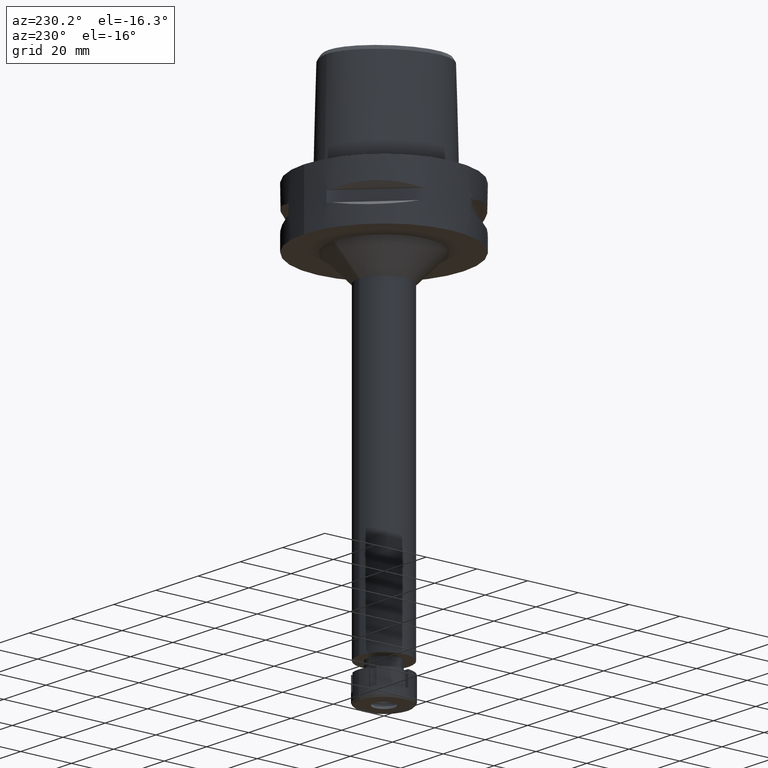
[diagram: clean part render]
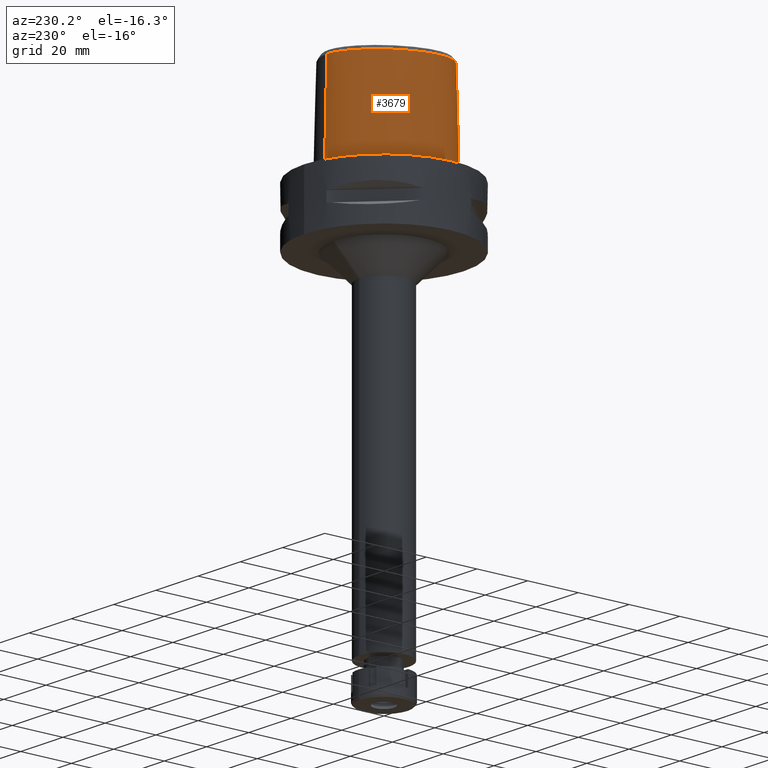
[diagram: same view with one face highlighted and labeled with its STEP entity id]
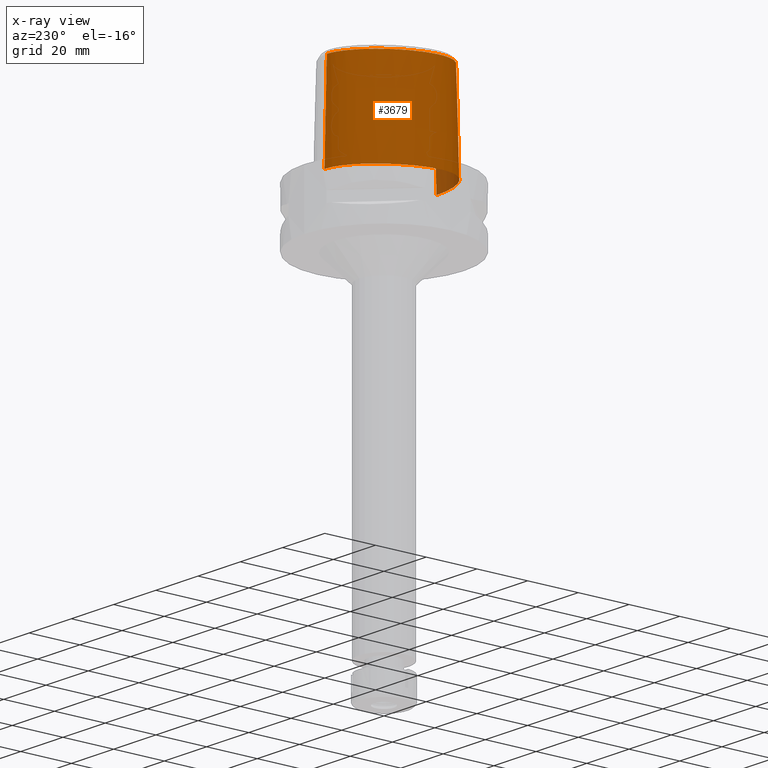
[diagram: x-ray of the same camera — body ghosted, the highlighted face saturated]
A machine part, auxiliary view. The second image highlights one B-rep face of the part: STEP entity #3679.
The next image is the same camera in x-ray: the body ghosted, the highlighted face saturated — about 3% of this face is hidden behind the body in this view.
In plain terms, the highlighted face is a freeform B-spline surface patch.
Its self-contained STEP definition (entity closure, byte-faithful):
#6 = CARTESIAN_POINT ( 'NONE',  ( -20.16779742989000113, 4.447573677405999959, 24.59139852881000010 ) ) ;
#34 = CARTESIAN_POINT ( 'NONE',  ( -17.80867312147000092, 10.28184210894000117, 11.93048047436999859 ) ) ;
#65 = CARTESIAN_POINT ( 'NONE',  ( -20.76670354678000052, 4.663413653145999760, -0.7304375800635999338 ) ) ;
#90 = CARTESIAN_POINT ( 'NONE',  ( -17.25769860237999964, 9.963736585049000283, 37.25231658324999984 ) ) ;
#116 = CARTESIAN_POINT ( 'NONE',  ( -21.68301106276999946, -0.3332743945289000087, 11.93048047436999859 ) ) ;
#133 = CARTESIAN_POINT ( 'NONE',  ( -20.34961802006919740, -11.74885744178855340, -1.590631032948432513E-06 ) ) ;
#141 = CARTESIAN_POINT ( 'NONE',  ( -19.15132530970000246, -12.46323155930000048, 24.59139852881000010 ) ) ;
#155 = CARTESIAN_POINT ( 'NONE',  ( -5.098437032125580082, 22.52602542770555871, -1.590631032948432513E-06 ) ) ;
#164 = CARTESIAN_POINT ( 'NONE',  ( -16.77374386016999708, -15.44292476917000023, 11.93048047436999859 ) ) ;
#191 = CARTESIAN_POINT ( 'NONE',  ( -1.853278696391999825, -20.08023933730999744, 24.59139852881000010 ) ) ;
#224 = CARTESIAN_POINT ( 'NONE',  ( -21.76083716802999746, -6.805026051213000748, 11.93048047436999859 ) ) ;
#227 = CARTESIAN_POINT ( 'NONE',  ( -3.830582834638338596, -20.11061303524462573, 14.18178188204342405 ) ) ;
#243 = VERTEX_POINT ( 'NONE', #252 ) ;
#252 = CARTESIAN_POINT ( 'NONE',  ( -6.936546298697000348E-13, -20.38876923348000147, 11.44999999999999929 ) ) ;
#253 = CARTESIAN_POINT ( 'NONE',  ( 0.4439216921927999771, -19.74161857628000050, 37.25231658324999984 ) ) ;
#261 = CARTESIAN_POINT ( 'NONE',  ( -2.187988573835274675, -20.13397303482912903, 18.90815865957991804 ) ) ;
#291 = CARTESIAN_POINT ( 'NONE',  ( -2.823171496020530746, -20.10104368072839165, 18.40390846381850665 ) ) ;
#302 = EDGE_CURVE ( 'NONE', #4441, #243, #5310, .T. ) ;
#344 = CARTESIAN_POINT ( 'NONE',  ( -2.647522161654190409, -20.26593589461833744, 12.41993733201942263 ) ) ;
#400 = CARTESIAN_POINT ( 'NONE',  ( -21.32871527669595935, -4.105831244393796098, 36.52186244848012109 ) ) ;
#451 = CARTESIAN_POINT ( 'NONE',  ( -18.08416038101000112, 10.44089487087999935, -0.7304375800635999338 ) ) ;
#458 = CARTESIAN_POINT ( 'NONE',  ( -2.503154198992729729, -19.81241979316484603, 31.80000012753034966 ) ) ;
#466 = CARTESIAN_POINT ( 'NONE',  ( -3.467735300037683377, -20.16817589423725465, 13.40749538294857146 ) ) ;
#482 = CARTESIAN_POINT ( 'NONE',  ( -4.868968454919000877, 21.95285545920999937, 24.59139852881000010 ) ) ;
#488 = CARTESIAN_POINT ( 'NONE',  ( -1.251533273949542169, -19.88005341380073432, 31.80000012753034966 ) ) ;
#497 = VERTEX_POINT ( 'NONE', #3846 ) ;
#511 = CARTESIAN_POINT ( 'NONE',  ( -10.34823243684000005, 18.70095506131000107, 24.59139852881000010 ) ) ;
#567 = CARTESIAN_POINT ( 'NONE',  ( -14.17879762360999862, 15.44741198512000047, 11.93048047436999859 ) ) ;
#586 = CARTESIAN_POINT ( 'NONE',  ( -7.571159454497413677, 21.31457034692602548, -1.590631032948432513E-06 ) ) ;
#595 = CARTESIAN_POINT ( 'NONE',  ( -10.91263711307000150, -18.01320810253000104, 37.25231658324999984 ) ) ;
#615 = CARTESIAN_POINT ( 'NONE',  ( -1.678547993840546537, -20.33965717508419502, 11.81410234512601853 ) ) ;
#616 = CARTESIAN_POINT ( 'NONE',  ( -1.975847471388772369, -20.32064467132638796, 11.96254614166202757 ) ) ;
#621 = CARTESIAN_POINT ( 'NONE',  ( -21.57281239023000197, -9.001246194474999740, -0.7304375800635999338 ) ) ;
#627 = CARTESIAN_POINT ( 'NONE',  ( -3.848435446462607157, -20.04310701875527911, 16.79138261317859104 ) ) ;
#648 = CARTESIAN_POINT ( 'NONE',  ( -16.38077696138999784, -14.94316464914999898, 37.25231658324999984 ) ) ;
#649 = EDGE_LOOP ( 'NONE', ( #927, #5428, #3867, #4135, #2287, #4396, #5520, #2902 ) ) ;
#655 = CARTESIAN_POINT ( 'NONE',  ( -4.019667317128778450, -20.04319797611780984, 16.01149687265074917 ) ) ;
#657 = CARTESIAN_POINT ( 'NONE',  ( -2.945056662729590435, -20.23335974770773404, 12.71951979027752166 ) ) ;
#670 = CARTESIAN_POINT ( 'NONE',  ( -22.24453911843729870, -4.100468749765984633, -1.590631032948432513E-06 ) ) ;
#686 = CARTESIAN_POINT ( 'NONE',  ( -20.36546124296999949, -11.75800453082999830, -0.7304375800635999338 ) ) ;
#713 = CARTESIAN_POINT ( 'NONE',  ( -14.68244496996000059, -17.23001772813000088, -0.7304375800635999338 ) ) ;
#714 = EDGE_CURVE ( 'NONE', #1225, #2341, #3553, .T. ) ;
#720 = CARTESIAN_POINT ( 'NONE',  ( -2.852725281555362535, -20.09931334524931401, 18.37480908509491684 ) ) ;
#748 = CARTESIAN_POINT ( 'NONE',  ( -1.533511455572774462, -20.16025888516049847, 19.24845571506998709 ) ) ;
#779 = CARTESIAN_POINT ( 'NONE',  ( -4.467522189396128773, -19.48130287050979348, 36.52186244848012109 ) ) ;
#828 = CARTESIAN_POINT ( 'NONE',  ( -20.09619618741212932, -10.23243843867888181, 36.52186244848012109 ) ) ;
#883 = CARTESIAN_POINT ( 'NONE',  ( 0.7234356449526999633, 23.47140592420999639, -0.7304375800635999338 ) ) ;
#895 = CARTESIAN_POINT ( 'NONE',  ( -3.522029659439640081, -20.16043548747140690, 13.49928467490661710 ) ) ;
#927 = ORIENTED_EDGE ( 'NONE', *, *, #4798, .F. ) ;
#969 = CARTESIAN_POINT ( 'NONE',  ( 0.4823619556322999435, 23.48603817964999863, -0.7304375800635999338 ) ) ;
#971 = CARTESIAN_POINT ( 'NONE',  ( -3.089195988020840389, -20.21685458561790583, 12.88011891962714017 ) ) ;
#976 = CARTESIAN_POINT ( 'NONE',  ( -0.8945856573126832467, -20.17742435737030959, 19.45218689967066084 ) ) ;
#1001 = CARTESIAN_POINT ( 'NONE',  ( -4.750826224791000030, 21.65775806877000065, 37.25231658324999984 ) ) ;
#1031 = CARTESIAN_POINT ( 'NONE',  ( -17.88993660681999742, -13.52675025299999945, 37.25231658324999984 ) ) ;
#1051 = CARTESIAN_POINT ( 'NONE',  ( -20.74942744641430181, 4.657187513557980552, -1.590631032948432513E-06 ) ) ;
#1070 = CARTESIAN_POINT ( 'NONE',  ( -3.686640039273423319, -20.05085371969648378, 17.17691650729972608 ) ) ;
#1078 = CARTESIAN_POINT ( 'NONE',  ( -21.55524829833817790, -8.996025401994035775, -1.590631032948432513E-06 ) ) ;
#1086 = CARTESIAN_POINT ( 'NONE',  ( -6.232237598765999920, -19.68961187751999731, 24.59139852881000010 ) ) ;
#1089 = CARTESIAN_POINT ( 'NONE',  ( -16.39211280191938513, -14.95758113318741422, 36.52186244848012109 ) ) ;
#1092 = CARTESIAN_POINT ( 'NONE',  ( -1.320866626972709401, -20.16697411650878990, 19.32965971007563510 ) ) ;
#1142 = EDGE_CURVE ( 'NONE', #1225, #2801, #3828, .T. ) ;
#1154 = LINE ( 'NONE', #5071, #5420 ) ;
#1183 = CARTESIAN_POINT ( 'NONE',  ( -3.724367697017637813, -20.04896662180712497, 17.09120659051006541 ) ) ;
#1195 = CARTESIAN_POINT ( 'NONE',  ( 2.041042029990999821E-08, -19.88004246002000031, 31.80000004972000127 ) ) ;
#1208 = CARTESIAN_POINT ( 'NONE',  ( -3.637738201363999835, -19.56971413236999879, 36.52186244848000030 ) ) ;
#1211 = CARTESIAN_POINT ( 'NONE',  ( -4.044860985360022809, -20.04749655353610294, 15.72095293212619893 ) ) ;
#1225 = VERTEX_POINT ( 'NONE', #3387 ) ;
#1233 = VECTOR ( 'NONE', #5552, 1000.000000000000114 ) ;
#1239 = DIRECTION ( 'NONE',  ( -4.234889124639874260E-13, -0.02499051295389925070, -0.9996876883618708298 ) ) ;
#1240 = CARTESIAN_POINT ( 'NONE',  ( -20.67704215115528754, -8.734985316449790815, 36.52186244848012109 ) ) ;
#1267 = CARTESIAN_POINT ( 'NONE',  ( -3.671249123513567802, -19.60525173594972514, 34.94790829898666829 ) ) ;
#1286 = B_SPLINE_CURVE_WITH_KNOTS ( 'NONE', 3,
 ( #4947, #3659, #4523, #155, #586, #5402, #1509, #1561, #1051, #4918, #670, #1925, #1078, #3597, #133, #2792, #1897, #2411, #1877, #5378, #1476, #3182, #3155 ),
 .UNSPECIFIED., .F., .F.,
 ( 4, 1, 1, 1, 1, 1, 1, 1, 1, 1, 1, 1, 1, 1, 1, 1, 1, 1, 1, 1, 4 ),
 ( 0.0000000000000000000, 0.04166666666724999635, 0.08333333333387001052, 0.1250000000004999889, 0.1666666666672000086, 0.2500000000004000134, 0.3333333333335999904, 0.4166666666670000296, 0.5000000000001999512, 0.5416666666668999985, 0.5833333333333999837, 0.6250000000001000311, 0.6458333333333999837, 0.6666666666667000474, 0.6875000000000000000, 0.7083333333333000637, 0.7500000000000000000, 0.7916666666666000163, 0.8333333333332000326, 0.9166666666664999852, 1.000000000000000000 ),
 .UNSPECIFIED. ) ;
#1314 = CARTESIAN_POINT ( 'NONE',  ( 0.6850314155862000653, 22.83959056903000118, 24.59139852881000010 ) ) ;
#1341 = CARTESIAN_POINT ( 'NONE',  ( -19.88562090098495005, 4.345879983792466206, 36.52186244848012109 ) ) ;
#1342 = CARTESIAN_POINT ( 'NONE',  ( -7.099337802566000555, 20.50831395173999994, 37.25231658324999984 ) ) ;
#1345 = CARTESIAN_POINT ( 'NONE',  ( -3.294693599458651700, -20.19174263028435234, 13.14094743667249254 ) ) ;
#1386 = CARTESIAN_POINT ( 'NONE',  ( -3.647723961122987024, -20.14156542810248496, 13.73530131633870610 ) ) ;
#1404 = CARTESIAN_POINT ( 'NONE',  ( -21.99640701348999983, -0.2778990166615000201, -0.7304375800635999338 ) ) ;
#1409 = CARTESIAN_POINT ( 'NONE',  ( -3.736722311398999796, -19.67781602443999844, 31.80000000000000071 ) ) ;
#1435 = CARTESIAN_POINT ( 'NONE',  ( -0.5821289287476999474, 22.88453099113999656, 24.59139852881000010 ) ) ;
#1476 = CARTESIAN_POINT ( 'NONE',  ( -6.341471026277423206, -20.29812503936724966, -1.590631032948432513E-06 ) ) ;
#1487 = CARTESIAN_POINT ( 'NONE',  ( -16.97022730955000114, -15.69280482917999997, -0.7304375800635999338 ) ) ;
#1491 = CARTESIAN_POINT ( 'NONE',  ( -3.952973241258888937, -20.08624587561761743, 14.60894738506809709 ) ) ;
#1509 = CARTESIAN_POINT ( 'NONE',  ( -14.40795642013373801, 15.64093752580083141, -1.590631032948432513E-06 ) ) ;
#1517 = CARTESIAN_POINT ( 'NONE',  ( -18.58171406405999804, -14.18198046378999955, -0.7304375800635999338 ) ) ;
#1519 = CARTESIAN_POINT ( 'NONE',  ( -3.862670319767398386, -20.10459525844602169, 14.28058037402878355 ) ) ;
#1525 = CARTESIAN_POINT ( 'NONE',  ( -2.620910454320059202, -20.11234871000608138, 18.58832188861294910 ) ) ;
#1540 = CARTESIAN_POINT ( 'NONE',  ( -1.812531856175363609, -20.33143503110655104, 11.87770907741172621 ) ) ;
#1545 = CARTESIAN_POINT ( 'NONE',  ( 0.6657744346529000934, -19.73734270126000112, 37.25231658324999984 ) ) ;
#1561 = CARTESIAN_POINT ( 'NONE',  ( -18.06826691987762601, 10.43171876998113135, -1.590631032948432513E-06 ) ) ;
#1572 = CARTESIAN_POINT ( 'NONE',  ( -6.175998610020999813, -19.37631799267999710, 37.25231658324999984 ) ) ;
#1579 = CARTESIAN_POINT ( 'NONE',  ( -2.781372202970820329, -20.10345949974347235, 18.44421388672484952 ) ) ;
#1610 = CARTESIAN_POINT ( 'NONE',  ( -2.696297221291517054, -20.10826766487147665, 18.52327467490404800 ) ) ;
#1635 = B_SPLINE_CURVE_WITH_KNOTS ( 'NONE', 3,
 ( #5251, #488, #458, #1409 ),
 .UNSPECIFIED., .F., .F.,
 ( 4, 4 ),
 ( 0.0000000000000000000, 1.000000000000000000 ),
 .UNSPECIFIED. ) ;
#1637 = CARTESIAN_POINT ( 'NONE',  ( -4.048201904855770472, -20.04950689277237430, 15.62483520886270050 ) ) ;
#1657 = CARTESIAN_POINT ( 'NONE',  ( -1.813174329720000123E-11, 22.56201468012000078, 36.52186680743999858 ) ) ;
#1670 = CARTESIAN_POINT ( 'NONE',  ( -1.560125442582418476, -20.34639974841496723, 11.76254649919985873 ) ) ;
#1692 = CARTESIAN_POINT ( 'NONE',  ( -10.15538788053390107, 18.47129535094051178, 36.52186244848012109 ) ) ;
#1696 = CARTESIAN_POINT ( 'NONE',  ( -3.637738201363999835, -19.56971413236999879, 36.52186244848000030 ) ) ;
#1736 = CARTESIAN_POINT ( 'NONE',  ( -20.46725048833999949, 4.555493665275999859, 11.93048047436999859 ) ) ;
#1767 = CARTESIAN_POINT ( 'NONE',  ( -21.62788410578000153, -4.104079497862000103, 24.59139852881000010 ) ) ;
#1803 = CARTESIAN_POINT ( 'NONE',  ( -3.699028711252647206, -20.13326891470799396, 13.84698179887988978 ) ) ;
#1816 = CARTESIAN_POINT ( 'NONE',  ( -13.93560872910999926, 15.24203796933999833, 24.59139852881000010 ) ) ;
#1826 = CARTESIAN_POINT ( 'NONE',  ( 0.0000000000000000000, -20.18628283968999781, 19.55000000000000071 ) ) ;
#1851 = CARTESIAN_POINT ( 'NONE',  ( -21.36961511204999908, -0.3886497723961999662, 24.59139852881000010 ) ) ;
#1860 = CARTESIAN_POINT ( 'NONE',  ( -0.2476349277130089344, -20.18628283969000492, 19.55000000000000782 ) ) ;
#1875 = EDGE_CURVE ( 'NONE', #2801, #4040, #3807, .T. ) ;
#1877 = CARTESIAN_POINT ( 'NONE',  ( -14.67337966393892401, -17.21410159716221244, -1.590631032948432513E-06 ) ) ;
#1884 = CARTESIAN_POINT ( 'NONE',  ( -21.26836746780000098, -8.910752261074998515, 11.93048047436999859 ) ) ;
#1886 = CARTESIAN_POINT ( 'NONE',  ( -3.373031804187405669, -20.18121639258755451, 13.25829856262909701 ) ) ;
#1897 = CARTESIAN_POINT ( 'NONE',  ( -18.56841068039064879, -14.16937991025299404, -1.590631032948432513E-06 ) ) ;
#1908 = CARTESIAN_POINT ( 'NONE',  ( 0.4479792504548000265, -20.05810161161999972, 24.59139852881000010 ) ) ;
#1925 = CARTESIAN_POINT ( 'NONE',  ( -22.05732878274992004, -6.847636724430295807, -1.590631032948432513E-06 ) ) ;
#1939 = CARTESIAN_POINT ( 'NONE',  ( -22.07548128864000248, -6.850245535128999919, -0.7304375800635999338 ) ) ;
#1968 = CARTESIAN_POINT ( 'NONE',  ( -20.96392254536999999, -8.820258327674999066, 24.59139852881000010 ) ) ;
#1970 = CARTESIAN_POINT ( 'NONE',  ( -3.788123932986404707, -20.11813248785005115, 14.06654490362369536 ) ) ;
#1977 = CARTESIAN_POINT ( 'NONE',  ( -1.517187227777487379, -20.16080388944384083, 19.25509261511386327 ) ) ;
#1996 = CARTESIAN_POINT ( 'NONE',  ( -20.65947762293999546, -8.729764394275001393, 37.25231658324999984 ) ) ;
#2003 = CARTESIAN_POINT ( 'NONE',  ( -2.467031803646716703, -20.12045714792750672, 18.71463355124587835 ) ) ;
#2004 = CARTESIAN_POINT ( 'NONE',  ( -3.024136408352561922, -20.22444627912442883, 12.80466769080733158 ) ) ;
#2034 = CARTESIAN_POINT ( 'NONE',  ( -3.081106146089191977, -20.08580853919490394, 18.14635433979055534 ) ) ;
#2063 = CARTESIAN_POINT ( 'NONE',  ( -2.095920934924301093, -20.13817625620761120, 18.96566852664292924 ) ) ;
#2085 = CARTESIAN_POINT ( 'NONE',  ( -10.91891098965447959, -18.03046406390570411, 36.52186244848012109 ) ) ;
#2089 = CARTESIAN_POINT ( 'NONE',  ( -1.638762875757055593, -20.34199391072963436, 11.79616403447456285 ) ) ;
#2200 = CARTESIAN_POINT ( 'NONE',  ( -3.439520336088130126, -20.17214097397766182, 13.36117420421215662 ) ) ;
#2222 = CARTESIAN_POINT ( 'NONE',  ( -10.55288408668999978, 18.94467590845999894, 11.93048047436999859 ) ) ;
#2269 = CARTESIAN_POINT ( 'NONE',  ( -2.568271205268000124, 23.31126238145999707, -0.7304375800635999338 ) ) ;
#2277 = EDGE_CURVE ( 'NONE', #2335, #4441, #3562, .T. ) ;
#2287 = ORIENTED_EDGE ( 'NONE', *, *, #714, .F. ) ;
#2301 = CARTESIAN_POINT ( 'NONE',  ( -17.53318586191999984, 10.12278934699000033, 24.59139852881000010 ) ) ;
#2330 = CARTESIAN_POINT ( 'NONE',  ( -19.54161185807999956, -11.28235486488999939, 37.25231658324999984 ) ) ;
#2335 = VERTEX_POINT ( 'NONE', #1195 ) ;
#2341 = VERTEX_POINT ( 'NONE', #2543 ) ;
#2357 = CARTESIAN_POINT ( 'NONE',  ( -20.09084478133999951, -11.59945464217999955, 11.93048047436999859 ) ) ;
#2391 = CARTESIAN_POINT ( 'NONE',  ( -18.35112157830999990, -13.96357039353000040, 11.93048047436999859 ) ) ;
#2398 = CARTESIAN_POINT ( 'NONE',  ( -4.038047189179770236, -20.04588600821303501, 15.81762949444052246 ) ) ;
#2411 = CARTESIAN_POINT ( 'NONE',  ( -16.95889175061674692, -15.67838870326495204, -1.590631032948432513E-06 ) ) ;
#2413 = CARTESIAN_POINT ( 'NONE',  ( 2.041042029990999821E-08, -19.88004246002000031, 31.80000004972000127 ) ) ;
#2421 = CARTESIAN_POINT ( 'NONE',  ( -19.81622831970999954, -11.44090475353999992, 24.59139852881000010 ) ) ;
#2453 = CARTESIAN_POINT ( 'NONE',  ( -2.857701613778707905, -20.09902039673189122, 18.36986640665573489 ) ) ;
#2481 = CARTESIAN_POINT ( 'NONE',  ( -2.360303563074455546, -20.12579123674474602, 18.79379445004745719 ) ) ;
#2508 = CARTESIAN_POINT ( 'NONE',  ( -2.870676439667320778, -20.24157259641101092, 12.64311214024309216 ) ) ;
#2543 = CARTESIAN_POINT ( 'NONE',  ( -3.736722311398999796, -19.67781602443999844, 31.80000000000000071 ) ) ;
#2557 = CARTESIAN_POINT ( 'NONE',  ( -3.749024933915385382, -20.12484193209295569, 13.96788032053498618 ) ) ;
#2559 = CARTESIAN_POINT ( 'NONE',  ( -7.108589416785529913, 20.52412325828568385, 36.52186244848012109 ) ) ;
#2588 = CARTESIAN_POINT ( 'NONE',  ( -18.90964971338124201, -12.28759719904823200, 36.52186244848012109 ) ) ;
#2611 = CARTESIAN_POINT ( 'NONE',  ( -21.05621916132999871, -0.4440251502635000347, 37.25231658324999984 ) ) ;
#2668 = CARTESIAN_POINT ( 'NONE',  ( -0.5985508206599999825, 23.20171281896000082, 11.93048047436999859 ) ) ;
#2692 = CARTESIAN_POINT ( 'NONE',  ( 0.4569144571211000150, 22.85341801428999986, 24.59139852881000010 ) ) ;
#2715 = CARTESIAN_POINT ( 'NONE',  ( -7.580410838896000314, 21.33037926075000001, -0.7304375800635999338 ) ) ;
#2773 = CARTESIAN_POINT ( 'NONE',  ( -21.31039837723000119, -4.105938496760999534, 37.25231658324999984 ) ) ;
#2779 = CARTESIAN_POINT ( 'NONE',  ( -3.649552918765418763, -20.05278137445483466, 17.25690594501919506 ) ) ;
#2792 = CARTESIAN_POINT ( 'NONE',  ( -19.64947369085913564, -12.82525392966783429, -1.590631032948432513E-06 ) ) ;
#2800 = CARTESIAN_POINT ( 'NONE',  ( -20.36913780173000177, -10.35391846126000104, 24.59139852881000010 ) ) ;
#2801 = VERTEX_POINT ( 'NONE', #5435 ) ;
#2803 = CARTESIAN_POINT ( 'NONE',  ( -17.90324032096920703, -13.53935111955730264, 36.52186244848012109 ) ) ;
#2806 = CARTESIAN_POINT ( 'NONE',  ( -4.001073718362888165, -20.04211669945555485, 16.14143145178881866 ) ) ;
#2828 = CARTESIAN_POINT ( 'NONE',  ( -18.12052909256999911, -13.74516032326000037, 24.59139852881000010 ) ) ;
#2868 = CARTESIAN_POINT ( 'NONE',  ( -1.036028639268795182, -20.37488265450534186, 11.54589121856474421 ) ) ;
#2889 = CARTESIAN_POINT ( 'NONE',  ( -1.435479731732086428, -20.16346186668282670, 19.28735383016543636 ) ) ;
#2902 = ORIENTED_EDGE ( 'NONE', *, *, #4481, .T. ) ;
#2917 = CARTESIAN_POINT ( 'NONE',  ( -4.050020239240827102, -20.05172727870759175, 15.52772083009781667 ) ) ;
#2938 = CARTESIAN_POINT ( 'NONE',  ( -3.765619531578895618, -20.12201689240451685, 14.00897413268474523 ) ) ;
#2968 = CARTESIAN_POINT ( 'NONE',  ( -21.07430010672742426, -0.4408303445192650605, 36.52186244848012109 ) ) ;
#2971 = CARTESIAN_POINT ( 'NONE',  ( -3.704239276368590961, -19.64128040965313460, 33.37395414949332917 ) ) ;
#3079 = CARTESIAN_POINT ( 'NONE',  ( 0.6658293009029000453, 22.52368289142999913, 37.25231658324999984 ) ) ;
#3095 = CARTESIAN_POINT ( 'NONE',  ( -3.555378551744965421, -20.15552821991417431, 13.55933742269333742 ) ) ;
#3141 = CARTESIAN_POINT ( 'NONE',  ( -4.987110685046999947, 22.24795284964000075, 11.93048047436999859 ) ) ;
#3143 = CARTESIAN_POINT ( 'NONE',  ( -3.378917219881233613, -20.18042296661755941, 13.26717508011585878 ) ) ;
#3155 = CARTESIAN_POINT ( 'NONE',  ( -5.544117533597000181E-12, -20.67499999999999716, 7.264559324463998182E-14 ) ) ;
#3157 = EDGE_CURVE ( 'NONE', #2335, #2341, #1635, .T. ) ;
#3160 = CARTESIAN_POINT ( 'NONE',  ( -2.875633270581706924, -20.24102979138325864, 12.64810551045560949 ) ) ;
#3182 = CARTESIAN_POINT ( 'NONE',  ( -2.113823675427298543, -20.67500003976369172, -1.590631032948432513E-06 ) ) ;
#3193 = CARTESIAN_POINT ( 'NONE',  ( -18.89485289242000121, -12.27684381631999955, 37.25231658324999984 ) ) ;
#3204 = CARTESIAN_POINT ( 'NONE',  ( -2.840925263428953684, -20.10000581476812442, 18.38647058799852729 ) ) ;
#3221 = CARTESIAN_POINT ( 'NONE',  ( -11.13012657214000001, -18.61140120603999648, 11.93048047436999859 ) ) ;
#3226 = CARTESIAN_POINT ( 'NONE',  ( -3.732637044259099923, -20.04856818254153694, 17.07161403143208034 ) ) ;
#3242 = CARTESIAN_POINT ( 'NONE',  ( -19.66427014424999697, -12.83600704526999969, -0.7304375800635999338 ) ) ;
#3248 = CARTESIAN_POINT ( 'NONE',  ( -2.004946554115309532, -20.14219031904388402, 19.01961090508743268 ) ) ;
#3274 = CARTESIAN_POINT ( 'NONE',  ( -16.57726041077999923, -15.19304470915999872, 24.59139852881000010 ) ) ;
#3310 = CARTESIAN_POINT ( 'NONE',  ( -3.623131309222435537, -20.05420346129723441, 17.31085075801311746 ) ) ;
#3333 = CARTESIAN_POINT ( 'NONE',  ( -4.049668354669047510, -20.05093596202170048, 15.56089917110888976 ) ) ;
#3360 = CARTESIAN_POINT ( 'NONE',  ( -14.22011356155950068, -16.41829364186296658, 36.52186244848012109 ) ) ;
#3385 = CARTESIAN_POINT ( 'NONE',  ( -3.755699594870204105, -20.12370835398181512, 13.98431559339847396 ) ) ;
#3387 = CARTESIAN_POINT ( 'NONE',  ( -3.637738201363999835, -19.56971413236999879, 36.52186244848000030 ) ) ;
#3440 = CARTESIAN_POINT ( 'NONE',  ( -19.86834437145000010, 4.339653689535999170, 37.25231658324999984 ) ) ;
#3496 = CARTESIAN_POINT ( 'NONE',  ( -2.503210914551999622, 22.99958943622999996, 11.93048047436999859 ) ) ;
#3520 = CARTESIAN_POINT ( 'NONE',  ( 0.4696382063767000070, 23.16972809697000102, 11.93048047436999859 ) ) ;
#3553 = B_SPLINE_CURVE_WITH_KNOTS ( 'NONE', 3,
 ( #1696, #1267, #2971, #4678 ),
 .UNSPECIFIED., .F., .F.,
 ( 4, 4 ),
 ( 0.0000000000000000000, 1.000000000000000000 ),
 .UNSPECIFIED. ) ;
#3554 = CARTESIAN_POINT ( 'NONE',  ( -22.26285556288999956, -4.100361500063000264, -0.7304375800635999338 ) ) ;
#3558 = CARTESIAN_POINT ( 'NONE',  ( -3.389265356481617975, -20.17902220973950378, 13.28291429010534586 ) ) ;
#3562 = B_SPLINE_CURVE_WITH_KNOTS ( 'NONE', 3,
 ( #2413, #4111, #4583, #3689 ),
 .UNSPECIFIED., .F., .F.,
 ( 4, 4 ),
 ( 0.0000000000000000000, 1.000000000000000000 ),
 .UNSPECIFIED. ) ;
#3584 = CARTESIAN_POINT ( 'NONE',  ( -21.13154892681000163, -6.714587083380999744, 37.25231658324999984 ) ) ;
#3597 = CARTESIAN_POINT ( 'NONE',  ( -20.93173255850151193, -10.60431642245365147, -1.590631032948432513E-06 ) ) ;
#3610 = CARTESIAN_POINT ( 'NONE',  ( -20.94844325638000271, -10.61175396898000045, -0.7304375800635999338 ) ) ;
#3639 = CARTESIAN_POINT ( 'NONE',  ( -14.36818034354999973, -16.67825731972000014, 24.59139852881000010 ) ) ;
#3659 = CARTESIAN_POINT ( 'NONE',  ( -0.8548392451239059664, 23.47500003976484351, -1.590631032948432513E-06 ) ) ;
#3668 = CARTESIAN_POINT ( 'NONE',  ( 0.4520368087166999338, -20.37458464696999982, 11.93048047436999859 ) ) ;
#3675 = CARTESIAN_POINT ( 'NONE',  ( -1.945188340990088527, -20.14472224014066981, 19.05290483599387841 ) ) ;
#3679 = ADVANCED_FACE ( 'NONE', ( #4845 ), #4705, .T. ) ;
#3680 = CARTESIAN_POINT ( 'NONE',  ( -1.592783463533563149, -20.34459380331111333, 11.77630631410508677 ) ) ;
#3689 = CARTESIAN_POINT ( 'NONE',  ( 0.0000000000000000000, -20.18628283968999781, 19.55000000000000071 ) ) ;
#3696 = CARTESIAN_POINT ( 'NONE',  ( -6.288476587509999050, -20.00290576236000106, 11.93048047436999859 ) ) ;
#3733 = CARTESIAN_POINT ( 'NONE',  ( -3.258458186252930933, -20.07518877969969395, 17.91982202573088401 ) ) ;
#3762 = CARTESIAN_POINT ( 'NONE',  ( -2.218905924398697938, -20.13252692328815385, 18.88811097025638830 ) ) ;
#3765 = CARTESIAN_POINT ( 'NONE',  ( -1.555094416682109904, -20.34667554096305153, 11.76044708272214478 ) ) ;
#3807 = LINE ( 'NONE', #1657, #1233 ) ;
#3828 = B_SPLINE_CURVE_WITH_KNOTS ( 'NONE', 3,
 ( #1208, #779, #4206, #2085, #3360, #1089, #2803, #2588, #4308, #828, #1240, #4261, #400, #2968, #1341, #4653, #3865, #1692, #2559, #5101, #4336, #5554, #5157 ),
 .UNSPECIFIED., .F., .F.,
 ( 4, 1, 1, 1, 1, 1, 1, 1, 1, 1, 1, 1, 1, 1, 1, 1, 1, 1, 1, 1, 4 ),
 ( 0.0000000000000000000, 0.03580973941721924542, 0.1234633994701801463, 0.1672902294966080450, 0.2111170595230359437, 0.2549438895495689250, 0.2768573045627829576, 0.2987707195759968237, 0.3206841345892108563, 0.3425975496024247224, 0.3864243796289578703, 0.4302512096552805199, 0.4740780396818136677, 0.5617316997346692986, 0.6493853597877355943, 0.7370390198405912807, 0.8246926798934470781, 0.8685195099199800595, 0.9123463399464394330, 0.9561731699728883704, 1.000000000000000000 ),
 .UNSPECIFIED. ) ;
#3846 = CARTESIAN_POINT ( 'NONE',  ( -5.544117533597000181E-12, -20.67499999999999716, 7.264559324463998182E-14 ) ) ;
#3865 = CARTESIAN_POINT ( 'NONE',  ( -13.70645028110956432, 15.04851272300592235, 36.52186244848012109 ) ) ;
#3867 = ORIENTED_EDGE ( 'NONE', *, *, #2277, .F. ) ;
#3893 = CARTESIAN_POINT ( 'NONE',  ( 0.4441907078655000229, 22.53710793160999870, 37.25231658324999984 ) ) ;
#3926 = CARTESIAN_POINT ( 'NONE',  ( -13.69241983459999901, 15.03666395355999796, 37.25231658324999984 ) ) ;
#3938 = CARTESIAN_POINT ( 'NONE',  ( -2.086662004819396010, -20.31268127563378911, 12.02638839298497331 ) ) ;
#3951 = CARTESIAN_POINT ( 'NONE',  ( -10.14358078699000032, 18.45723421415999965, 37.25231658324999984 ) ) ;
#3977 = CARTESIAN_POINT ( 'NONE',  ( -7.259695481342999912, 20.78233572140999996, 24.59139852881000010 ) ) ;
#3999 = CARTESIAN_POINT ( 'NONE',  ( -2.887298006306552534, -20.23974971339209716, 12.65991565105042405 ) ) ;
#4004 = CARTESIAN_POINT ( 'NONE',  ( 0.4560943669786000076, -20.69106768230999904, -0.7304375800635999338 ) ) ;
#4030 = CARTESIAN_POINT ( 'NONE',  ( -21.44619304741999599, -6.759806567296999802, 24.59139852881000010 ) ) ;
#4036 = CARTESIAN_POINT ( 'NONE',  ( -1.222436418487023335, -20.16967318534058151, 19.36171385434369796 ) ) ;
#4040 = VERTEX_POINT ( 'NONE', #4322 ) ;
#4063 = CARTESIAN_POINT ( 'NONE',  ( -3.925430104255240416, -20.04100510367244681, 16.53130951953290761 ) ) ;
#4088 = CARTESIAN_POINT ( 'NONE',  ( -1.836486898537999846, -19.76356470764999784, 37.25231658324999984 ) ) ;
#4111 = CARTESIAN_POINT ( 'NONE',  ( 6.821586764262540543E-09, -19.98212988583292216, 27.71666688228260611 ) ) ;
#4118 = CARTESIAN_POINT ( 'NONE',  ( -1.870070494246000026, -20.39691396697000059, 11.93048047436999859 ) ) ;
#4126 = CARTESIAN_POINT ( 'NONE',  ( -1.656557867876204737, -20.15608475847800207, 19.19752105505822470 ) ) ;
#4132 = CARTESIAN_POINT ( 'NONE',  ( -6.936546298697000348E-13, -20.38876923348000147, 11.44999999999999929 ) ) ;
#4135 = ORIENTED_EDGE ( 'NONE', *, *, #3157, .T. ) ;
#4138 = CARTESIAN_POINT ( 'NONE',  ( -3.404642689844542769, -20.17693293396709819, 13.30648216239984727 ) ) ;
#4206 = CARTESIAN_POINT ( 'NONE',  ( -7.300578999877767927, -19.07170748892079359, 36.52186244848012109 ) ) ;
#4261 = CARTESIAN_POINT ( 'NONE',  ( -21.14970188364080528, -6.717195958887229423, 36.52186244848012109 ) ) ;
#4308 = CARTESIAN_POINT ( 'NONE',  ( -19.55745547455480704, -11.29150218116150484, 36.52186244848012109 ) ) ;
#4309 = CARTESIAN_POINT ( 'NONE',  ( -21.94536983433999922, -4.102220498962999784, 11.93048047436999859 ) ) ;
#4322 = CARTESIAN_POINT ( 'NONE',  ( 3.796788648475999581E-11, 23.47499999999000053, 6.972200594645999482E-14 ) ) ;
#4336 = CARTESIAN_POINT ( 'NONE',  ( -2.376843896515612009, 22.39422508473742823, 36.52186244848012109 ) ) ;
#4338 = CARTESIAN_POINT ( 'NONE',  ( -0.5657070368354000234, 22.56734916330999852, 37.25231658324999984 ) ) ;
#4369 = CARTESIAN_POINT ( 'NONE',  ( -2.438150623837000541, 22.68791649099000196, 24.59139852881000010 ) ) ;
#4391 = CARTESIAN_POINT ( 'NONE',  ( -5.105252915174999906, 22.54305024007999947, -0.7304375800635999338 ) ) ;
#4396 = ORIENTED_EDGE ( 'NONE', *, *, #1142, .T. ) ;
#4419 = CARTESIAN_POINT ( 'NONE',  ( -7.420053160119000069, 21.05635749107999999, 11.93048047436999859 ) ) ;
#4423 = CARTESIAN_POINT ( 'NONE',  ( -2.904740653634592995, -20.23783060520583277, 12.67768464775381076 ) ) ;
#4441 = VERTEX_POINT ( 'NONE', #5317 ) ;
#4450 = CARTESIAN_POINT ( 'NONE',  ( -6.344715576255000045, -20.31619964721000215, -0.7304375800635999338 ) ) ;
#4478 = CARTESIAN_POINT ( 'NONE',  ( -3.740210223300743042, -20.04820644071449465, 17.05351258041511286 ) ) ;
#4481 = EDGE_CURVE ( 'NONE', #4040, #497, #1286, .T. ) ;
#4503 = CARTESIAN_POINT ( 'NONE',  ( -1.886862292098999916, -20.71358859662999663, -0.7304375800635999338 ) ) ;
#4510 = CARTESIAN_POINT ( 'NONE',  ( -2.141741549225103736, -20.13611517949170349, 18.93769700922501897 ) ) ;
#4523 = CARTESIAN_POINT ( 'NONE',  ( -2.564517735131191412, 23.29328128916086271, -1.590631032948432513E-06 ) ) ;
#4537 = CARTESIAN_POINT ( 'NONE',  ( -14.21104803034000064, -16.40237711550999933, 37.25231658324999984 ) ) ;
#4570 = CARTESIAN_POINT ( 'NONE',  ( -1.769290236095233393, -20.15188564104882474, 19.14550049823999345 ) ) ;
#4583 = CARTESIAN_POINT ( 'NONE',  ( 6.841573484195552064E-09, -20.08420636276242277, 23.63333344114145618 ) ) ;
#4598 = CARTESIAN_POINT ( 'NONE',  ( -2.236153415286172397, -20.13171160814249205, 18.87674297724634087 ) ) ;
#4653 = CARTESIAN_POINT ( 'NONE',  ( -17.27359245833438095, 9.972912913898690945, 36.52186244848012109 ) ) ;
#4678 = CARTESIAN_POINT ( 'NONE',  ( -3.736722311398999796, -19.67781602443999844, 31.80000000000000071 ) ) ;
#4705 = B_SPLINE_SURFACE_WITH_KNOTS ( 'NONE', 3, 3, ( 
 ( #883, #4754, #1314, #3079 ),
 ( #969, #3520, #2692, #3893 ),
 ( #5279, #2668, #1435, #4338 ),
 ( #2269, #3496, #4369, #5191 ),
 ( #4391, #3141, #482, #1001 ),
 ( #2715, #4419, #3977, #1342 ),
 ( #4730, #2222, #511, #3951 ),
 ( #5246, #567, #1816, #3926 ),
 ( #451, #34, #2301, #90 ),
 ( #65, #1736, #6, #3440 ),
 ( #1404, #116, #1851, #2611 ),
 ( #3554, #4309, #1767, #2773 ),
 ( #1939, #224, #4030, #3584 ),
 ( #621, #1884, #1968, #1996 ),
 ( #3610, #5413, #2800, #5359 ),
 ( #686, #2357, #2421, #2330 ),
 ( #3242, #5330, #141, #3193 ),
 ( #1517, #2391, #2828, #1031 ),
 ( #1487, #164, #3274, #648 ),
 ( #713, #4928, #3639, #4537 ),
 ( #4868, #3221, #4957, #595 ),
 ( #4450, #3696, #1086, #1572 ),
 ( #4503, #4118, #191, #4088 ),
 ( #4004, #3668, #1908, #253 ),
 ( #5387, #4900, #4987, #1545 ) ),
 .UNSPECIFIED., .F., .F., .F.,
 ( 4, 1, 1, 1, 1, 1, 1, 1, 1, 1, 1, 1, 1, 1, 1, 1, 1, 1, 1, 1, 1, 1, 4 ),
 ( 4, 4 ),
 ( -0.01173777939042000042, 0.0000000000000000000, 0.04166666666724999635, 0.08333333333387001052, 0.1250000000004999889, 0.1666666666672000086, 0.2500000000004000134, 0.3333333333335999904, 0.4166666666670000296, 0.5000000000001999512, 0.5416666666668999985, 0.5833333333333999837, 0.6250000000001000311, 0.6458333333333999837, 0.6666666666667000474, 0.6875000000000000000, 0.7083333333333000637, 0.7500000000000000000, 0.7916666666666000163, 0.8333333333332000326, 0.9166666666664999852, 1.000000000000000000, 1.008985696609000060 ),
 ( 4.014025372505999806E-09, 0.9999997952846000349 ),
 .UNSPECIFIED. ) ;
#4730 = CARTESIAN_POINT ( 'NONE',  ( -10.75753573655000039, 19.18839675560999680, -0.7304375800635999338 ) ) ;
#4754 = CARTESIAN_POINT ( 'NONE',  ( 0.7042335302693999433, 23.15549824661999878, 11.93048047436999859 ) ) ;
#4798 = EDGE_CURVE ( 'NONE', #243, #497, #1154, .T. ) ;
#4818 = CARTESIAN_POINT ( 'NONE',  ( -3.215526995341419170, -20.20173576183426434, 13.03412874362234142 ) ) ;
#4845 = FACE_OUTER_BOUND ( 'NONE', #649, .T. ) ;
#4868 = CARTESIAN_POINT ( 'NONE',  ( -11.23887130166999881, -18.91049775780000175, -0.7304375800635999338 ) ) ;
#4877 = CARTESIAN_POINT ( 'NONE',  ( -1.025656898079880364, -20.17465608164540924, 19.42036563189136800 ) ) ;
#4900 = CARTESIAN_POINT ( 'NONE',  ( 0.6779535350901000346, -20.37023526533999984, 11.93048047436999859 ) ) ;
#4903 = CARTESIAN_POINT ( 'NONE',  ( -3.921294970897360344, -20.09312966257111199, 14.47785977240003774 ) ) ;
#4909 = CARTESIAN_POINT ( 'NONE',  ( -3.538396763548709245, -20.05888067283489207, 17.47415606028659596 ) ) ;
#4918 = CARTESIAN_POINT ( 'NONE',  ( -21.97832651724445441, -0.2810937430430209827, -1.590631032948432513E-06 ) ) ;
#4928 = CARTESIAN_POINT ( 'NONE',  ( -14.52531265674999972, -16.95413752392000006, 11.93048047436999859 ) ) ;
#4934 = CARTESIAN_POINT ( 'NONE',  ( -3.738100423593297972, -20.04830683710416039, 17.05857473067577956 ) ) ;
#4947 = CARTESIAN_POINT ( 'NONE',  ( 3.796788648475999581E-11, 23.47499999999000053, 6.972200594645999482E-14 ) ) ;
#4957 = CARTESIAN_POINT ( 'NONE',  ( -11.02138184260000031, -18.31230465428999921, 24.59139852881000010 ) ) ;
#4987 = CARTESIAN_POINT ( 'NONE',  ( 0.6718639848715001195, -20.05378898329999870, 24.59139852881000010 ) ) ;
#4993 = CARTESIAN_POINT ( 'NONE',  ( -1.492692049810980581, -20.16161490772261899, 19.26495844333630458 ) ) ;
#5020 = CARTESIAN_POINT ( 'NONE',  ( -3.704547339787717330, -20.04994126119360587, 17.13715336648521514 ) ) ;
#5046 = CARTESIAN_POINT ( 'NONE',  ( -4.049829286978767762, -20.05866643351804868, 15.25290641862979513 ) ) ;
#5071 = CARTESIAN_POINT ( 'NONE',  ( -6.936546298697000348E-13, -20.38876923348000147, 11.44999999999999929 ) ) ;
#5081 = CARTESIAN_POINT ( 'NONE',  ( -0.5052764329519503494, -20.38876923348000147, 11.44999999999999929 ) ) ;
#5101 = CARTESIAN_POINT ( 'NONE',  ( -4.757642277159151334, 21.67478330407124432, 36.52186244848012109 ) ) ;
#5119 = CARTESIAN_POINT ( 'NONE',  ( -2.421272737372783812, -20.28648162103850794, 12.24262651723187645 ) ) ;
#5126 = CARTESIAN_POINT ( 'NONE',  ( -3.744959948694050578, -20.12552913461134096, 13.95798024830087947 ) ) ;
#5157 = CARTESIAN_POINT ( 'NONE',  ( -1.813174329720000123E-11, 22.56201468012000078, 36.52186680743999858 ) ) ;
#5191 = CARTESIAN_POINT ( 'NONE',  ( -2.373090333122000128, 22.37624354576000130, 37.25231658324999984 ) ) ;
#5246 = CARTESIAN_POINT ( 'NONE',  ( -14.42198651810999976, 15.65278600090999994, -0.7304375800635999338 ) ) ;
#5251 = CARTESIAN_POINT ( 'NONE',  ( 2.041042029990999821E-08, -19.88004246002000031, 31.80000004972000127 ) ) ;
#5254 = CARTESIAN_POINT ( 'NONE',  ( -0.5041357072965171326, -20.18406821911008109, 19.52723308754542586 ) ) ;
#5279 = CARTESIAN_POINT ( 'NONE',  ( -0.6149727125723999377, 23.51889464678999886, -0.7304375800635999338 ) ) ;
#5310 = B_SPLINE_CURVE_WITH_KNOTS ( 'NONE', 3,
 ( #1826, #1860, #5254, #976, #4877, #4036, #1092, #2889, #4993, #1977, #748, #5367, #4126, #4570, #3675, #3248, #2063, #4510, #261, #3762, #4598, #2481, #2003, #1525, #1610, #1579, #291, #3204, #720, #2453, #2034, #3733, #5453, #4909, #3310, #2779, #1070, #5020, #1183, #3226, #4934, #4478, #627, #4063, #2806, #655, #2398, #1211, #1637, #3333, #2917, #5046, #5477, #1491, #4903, #1519, #227, #1970, #2938, #3385, #2557, #5126, #1803, #1386, #3095, #895, #466, #2200, #4138, #3558, #3143, #1886, #1345, #4818, #971, #2004, #657, #4423, #3999, #3160, #2508, #344, #5119, #3938, #616, #1540, #5534, #615, #2089, #3680, #5425, #1670, #3765, #2868, #5081, #4132 ),
 .UNSPECIFIED., .F., .F.,
 ( 4, 2, 2, 1, 1, 1, 2, 2, 2, 2, 1, 2, 2, 2, 1, 1, 1, 2, 2, 2, 2, 2, 1, 1, 2, 2, 2, 2, 1, 2, 2, 2, 2, 1, 1, 1, 2, 2, 2, 2, 1, 1, 2, 2, 2, 1, 1, 1, 2, 2, 2, 2, 2, 1, 1, 2, 2, 4 ),
 ( 0.0000000000000000000, 0.06250000000001650069, 0.09375000000002484124, 0.1093750000000288797, 0.1171875000000308920, 0.1210937500000320577, 0.1230468750000327932, 0.1250000000000335287, 0.1562500000000489331, 0.1718750000000568157, 0.1796875000000605627, 0.1835937500000624223, 0.1875000000000643097, 0.2187500000000782430, 0.2343750000000852374, 0.2421875000000890399, 0.2460937500000906220, 0.2480468750000913714, 0.2500000000000921485, 0.3125000000001060818, 0.3437500000001130762, 0.3593750000001169065, 0.3671875000001187939, 0.3710937500001193490, 0.3730468750001191269, 0.3750000000001189604, 0.4375000000001021405, 0.4687500000000937028, 0.4843750000000891509, 0.4921875000000872635, 0.5000000000000853762, 0.5625000000000682787, 0.5937500000000597300, 0.6093750000000551781, 0.6171875000000531797, 0.6210937500000519584, 0.6230468750000516254, 0.6250000000000511813, 0.6562500000000471845, 0.6718750000000451861, 0.6796875000000440759, 0.6835937500000437428, 0.6855468750000435207, 0.6875000000000434097, 0.7187500000000377476, 0.7343750000000347500, 0.7421875000000333067, 0.7460937500000326406, 0.7480468750000324185, 0.7500000000000320854, 0.8125000000000238698, 0.8437500000000197620, 0.8593750000000177636, 0.8671875000000167644, 0.8710937500000162093, 0.8730468750000160982, 0.8750000000000159872, 1.000000000000000000 ),
 .UNSPECIFIED. ) ;
#5317 = CARTESIAN_POINT ( 'NONE',  ( 0.0000000000000000000, -20.18628283968999781, 19.55000000000000071 ) ) ;
#5330 = CARTESIAN_POINT ( 'NONE',  ( -19.40779772697000283, -12.64961930227999964, 11.93048047436999859 ) ) ;
#5359 = CARTESIAN_POINT ( 'NONE',  ( -20.07948507441000174, -10.22500070739000044, 37.25231658324999984 ) ) ;
#5367 = CARTESIAN_POINT ( 'NONE',  ( -1.543155906917083708, -20.15993380737173979, 19.24449221917412700 ) ) ;
#5378 = CARTESIAN_POINT ( 'NONE',  ( -11.23259758093596616, -18.89324222508260576, -1.590631032948432513E-06 ) ) ;
#5387 = CARTESIAN_POINT ( 'NONE',  ( 0.6840430853087000607, -20.68668154738000098, -0.7304375800635999338 ) ) ;
#5402 = CARTESIAN_POINT ( 'NONE',  ( -10.74572893630757875, 19.17433596812460195, -1.590631032948432513E-06 ) ) ;
#5413 = CARTESIAN_POINT ( 'NONE',  ( -20.65879052905999913, -10.48283621512000074, 11.93048047436999859 ) ) ;
#5420 = VECTOR ( 'NONE', #1239, 1000.000000000000114 ) ;
#5425 = CARTESIAN_POINT ( 'NONE',  ( -1.573175409425758842, -20.34568097891642324, 11.76802073981991192 ) ) ;
#5428 = ORIENTED_EDGE ( 'NONE', *, *, #302, .F. ) ;
#5435 = CARTESIAN_POINT ( 'NONE',  ( -1.813174329720000123E-11, 22.56201468012000078, 36.52186680743999858 ) ) ;
#5453 = CARTESIAN_POINT ( 'NONE',  ( -3.474608496690548609, -20.06254674854062614, 17.58500429056359593 ) ) ;
#5477 = CARTESIAN_POINT ( 'NONE',  ( -4.027507123329243655, -20.06787434564643036, 14.99842726721304764 ) ) ;
#5520 = ORIENTED_EDGE ( 'NONE', *, *, #1875, .T. ) ;
#5534 = CARTESIAN_POINT ( 'NONE',  ( -1.758573507203345265, -20.33483936207348819, 11.85124969625364599 ) ) ;
#5552 = DIRECTION ( 'NONE',  ( 1.535576193583960688E-12, 0.02499051290971940689, -0.9996876883629751687 ) ) ;
#5554 = CARTESIAN_POINT ( 'NONE',  ( -0.7901461696973327564, 22.56201478746666567, 36.52186244848012109 ) ) ;